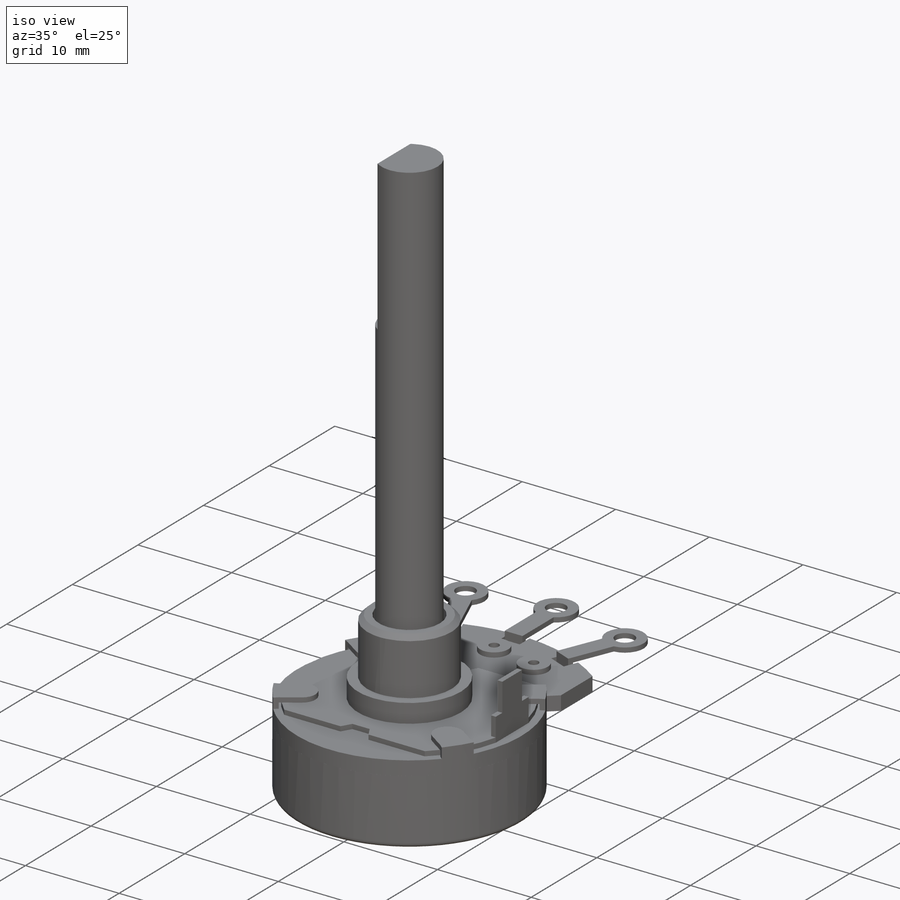
[diagram: iso view]
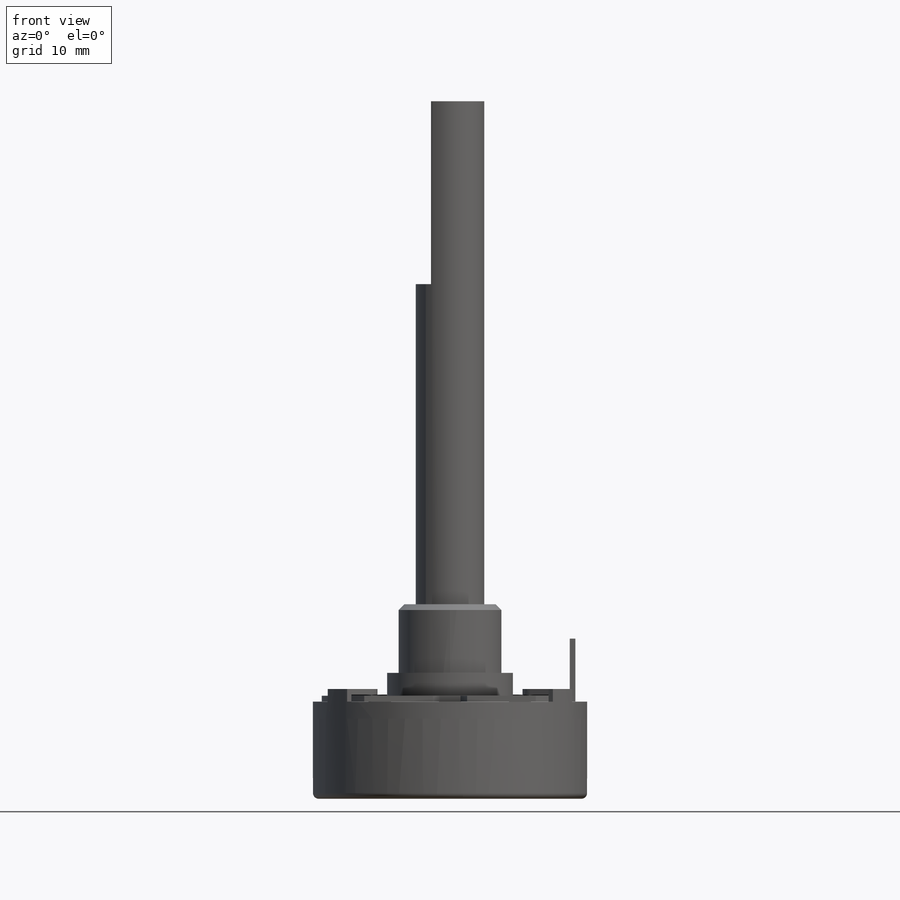
[diagram: front view]
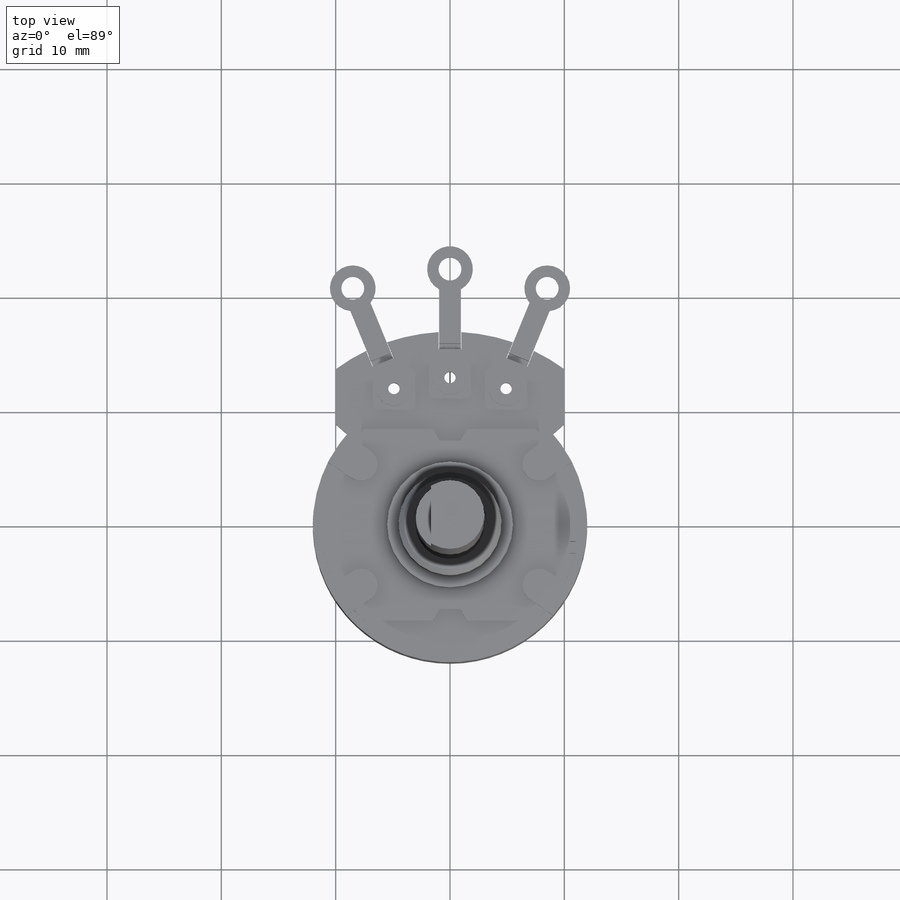
[diagram: top view]
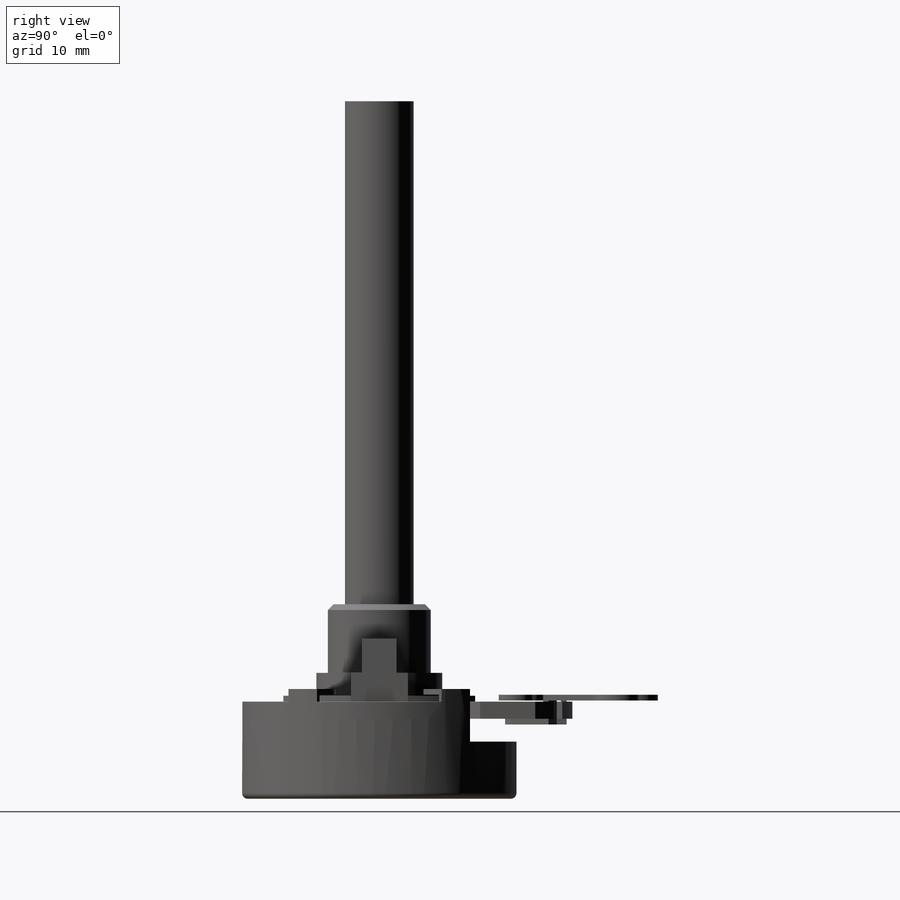
[diagram: right view]
SOLIDWORKS PART (.sldprt)
format: sldprt  version: not decoded by parser v0  size: 901,120 bytes
history: native  units: mm
features: sketch x26, extrude x21, plane x6, cut_extrude x5, material x1, fillet x1, chamfer x1 (+13 scaffold rows collapsed)
feature tree (74):
  scaffold x13  (default folders/planes/origin — collapsed)
  material  "Material <not specified>"
  sketch  "Sketch1"  dims[D1=24.0mm]
  extrude  "Boss-Extrude1"  Depth=7mm
  sketch  "Sketch2"  dims[D1=0.5mm]
  cut_extrude  "Cut-Extrude1"  Depth=6.5mm
  sketch  "Sketch3"  dims[D1=18.0mm]
  cut_extrude  "Cut-Extrude2"  Depth=2mm
  plane  "Plane1"  Offset=0.001mm
  sketch  "Sketch10"  dims[c1.D1=24.0mm c1.D2=24.0mm c2.D1=~29.150863mm c2.D2=1.0mm c2.D6=18.0mm c3.D1=20.0mm c3.D2=17.0mm c4.D1=20.0mm c4.D2=10.0mm c5.D1=4.0mm c5.D3=20.0mm c5.D4=~4.819174mm c5.D5=~4.819174mm c5.D7=5.0mm c5.D8=5.0mm c5.D6=~1.328284mm c6.D4=~4.819174mm c6.D5=~4.819174mm c6.D6=3.0mm c6.D9=1.5mm c6.D10=2.0mm c6.D11=2.0mm c6.D12=~16.911666mm c7.D12=90.0deg c8.D12=~1.710304mm c9.D12=90.0deg c10.D12=1.5mm c10.D13=2.0mm c10.D14=1.0mm]
  extrude  "Boss-Extrude2"  Depth=1.5mm
  sketch  "Sketch11"  dims[D1=0.5mm D2=6.0mm]
  extrude  "Boss-Extrude3"  Depth=2.6mm
  fillet  "Fillet1"  Radius=0.5mm
  plane  "Plane2"  Offset=0.01mm
  sketch  "Sketch14"  dims[c1.D1=0.25mm c1.D2=~4.271712mm c2.D2=120.0deg c2.D3=~1.33564mm c3.D3=120.0deg c3.D4=1.0mm c3.D5=3.0mm c3.D6=15.0mm c3.D7=6.0mm]
  extrude  "Boss-Extrude4"  Depth=0.5mm
  sketch  "Sketch15"  dims[D1=2.5mm D2=0.5mm]
  extrude  "Boss-Extrude5"  Depth=2mm
  sketch  "Sketch17"  dims[c1.D2=22.5mm c1.D1=6.0mm c2.D2=0.5mm c3.D2=30.0deg]
  cut_extrude  "Cut-Extrude7"  [1 undecoded]
  sketch  "Sketch18"  dims[D1=3.0mm]
  extrude  "Boss-Extrude6"  Depth=3mm
  plane  "Plane5"
  sketch  "Sketch19"  dims[D1=0.5mm]
  extrude  "Boss-Extrude7"  Depth=2mm
  sketch  "Sketch21"
  extrude  "Boss-Extrude8"  [1 undecoded]
  plane  "Plane7"
  sketch  "Sketch34"  dims[D1=0.5mm]
  extrude  "Boss-Extrude18"  Depth=2mm
  plane  "Plane8"
  sketch  "Sketch35"  dims[D1=0.5mm]
  extrude  "Boss-Extrude19"  Depth=2mm
  plane  "Plane9"
  sketch  "Sketch36"  dims[D1=0.5mm]
  extrude  "Boss-Extrude20"  Depth=2mm
  sketch  "Sketch37"
  extrude  "Boss-Extrude21"  [1 undecoded]
  sketch  "Sketch22"  dims[D1=11.0mm]
  extrude  "Boss-Extrude9"  Depth=2mm
  sketch  "Sketch23"  dims[D1=9.0mm D2=6.5mm]
  extrude  "Boss-Extrude10"  Depth=6mm
  chamfer  "Chamfer1"  Distance=0.5mm Angle=45deg
  sketch  "Sketch24"  dims[D1=6.0mm]
  extrude  "Boss-Extrude11"  Depth=50mm
  sketch  "Sketch25"  dims[D2=6.0mm D1=5.0mm]
  cut_extrude  "Cut-Extrude8"  Depth=16mm
  sketch  "Sketch26"  dims[c1.D1=1.9mm c1.1.9=1.9mm c1.D3=1.9mm c1.D4=1.5mm c1.D2=1.0mm c2.D4=1.0mm c2.D5=1.0mm]
  extrude  "Boss-Extrude12"  Depth=0.5mm
  sketch  "Sketch27"  dims[D1=0.5mm D2=0.5mm D3=0.5mm]
  extrude  "Boss-Extrude13"  Depth=2.1mm
  sketch  "Sketch28"  dims[D1=0.5mm]
  extrude  "Boss-Extrude14"  Depth=8mm
  sketch  "Sketch29"  dims[D1=0.5mm]
  extrude  "Boss-Extrude15"  Depth=8mm
  sketch  "Sketch30"  dims[D1=0.5mm]
  extrude  "Boss-Extrude16"  Depth=8mm
  sketch  "Sketch31"  dims[D1=4.0mm D2=4.0mm D3=4.0mm D4=3.0mm D5=3.0mm D6=3.0mm D7=1.0mm D8=1.0mm D9=1.0mm]
  extrude  "Boss-Extrude17"  [1 undecoded]
  sketch  "Sketch33"  dims[D1=2.0mm D2=2.0mm D3=2.0mm D4=1.0mm D5=1.0mm D6=1.0mm]
  cut_extrude  "Cut-Extrude9"  [1 undecoded]
decode coverage: 47 of 54 modeling features carry decoded parameters
note: ~ marks probable driven/reference dimensions
note: 5 parameter values undecoded
summary: no parameter record found for 5 features
note: suppression state not decoded; provenance and decode notes live in map.json
